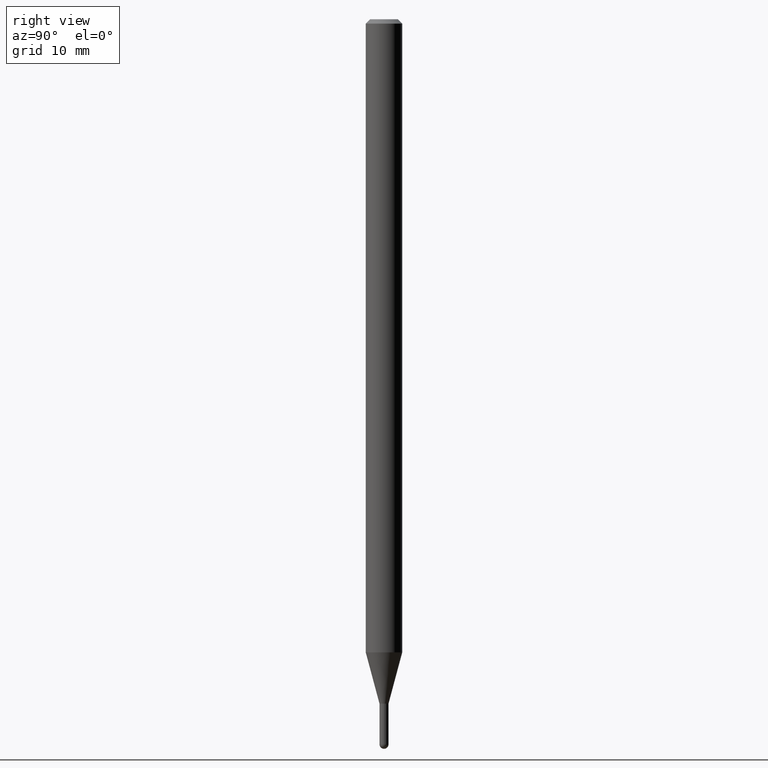
[diagram: clean part render]
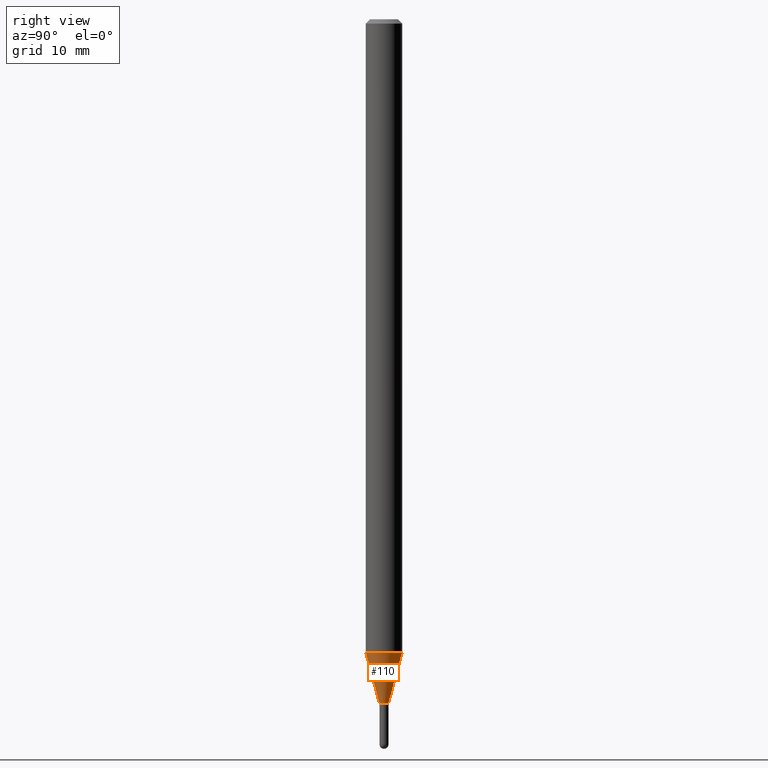
[diagram: same view with one face highlighted and labeled with its STEP entity id]
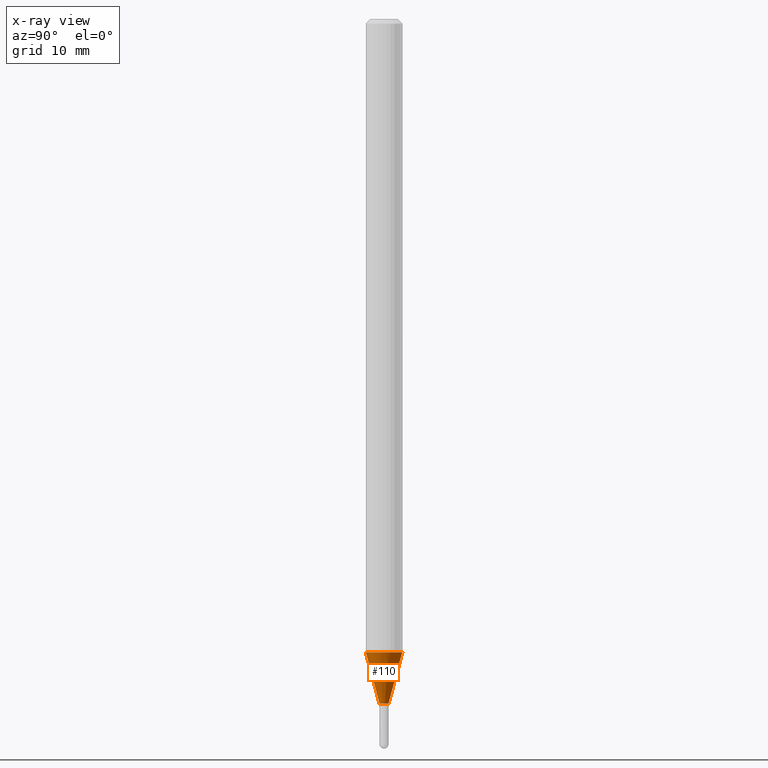
[diagram: x-ray of the same camera — body ghosted, the highlighted face saturated]
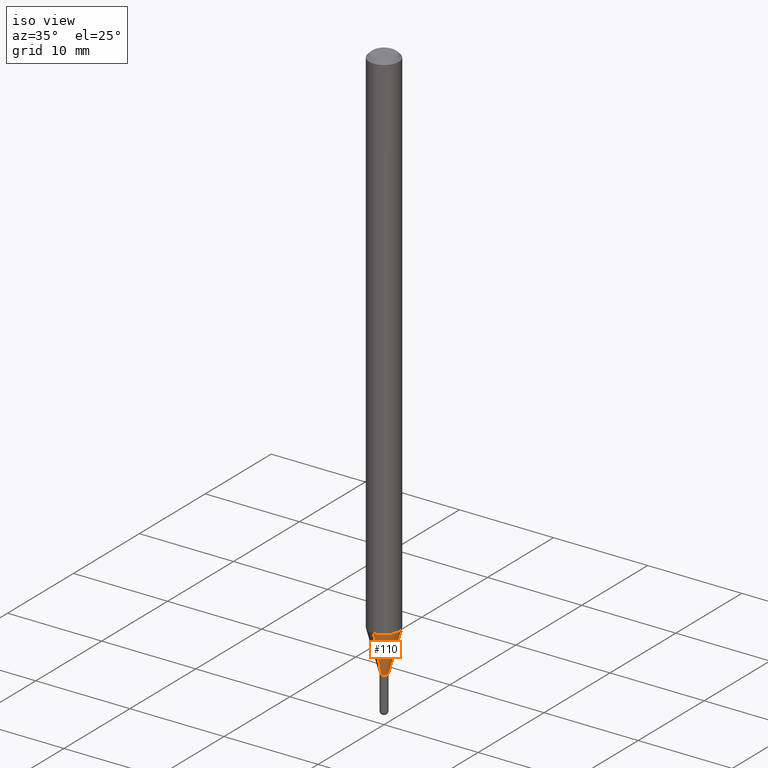
[diagram: same view with one face highlighted and labeled with its STEP entity id]
A machine part, right view. The second image highlights one B-rep face of the part: STEP entity #110.
The next image is the same camera in x-ray: the body ghosted, the highlighted face saturated — about 0% of this face is hidden behind the body in this view.
A second angle (iso view) of the same face is appended — the face is thin or edge-on in the first view.
In plain terms, the highlighted conical surface has half-angle 15 deg.
Its self-contained STEP definition (entity closure, byte-faithful):
#5 = VERTEX_POINT ( 'NONE', #294 ) ;
#6 = DIRECTION ( 'NONE',  ( -2.445469388235828600E-29, 3.491480505313426266E-15, 1.000000000000000000 ) ) ;
#27 = CARTESIAN_POINT ( 'NONE',  ( 5.734625715413019082E-29, -8.187521784959985664E-15, -2.345000000000000195 ) ) ;
#57 = VERTEX_POINT ( 'NONE', #468 ) ;
#74 = DIRECTION ( 'NONE',  ( -2.445469388235828600E-29, 3.491480505313426266E-15, 1.000000000000000000 ) ) ;
#107 = AXIS2_PLACEMENT_3D ( 'NONE', #266, #189, #122 ) ;
#110 = ADVANCED_FACE ( 'NONE', ( #457 ), #413, .T. ) ;
#116 = CARTESIAN_POINT ( 'NONE',  ( -1.082359215040773354E-16, -0.01550000000000783910, -2.345000000000000195 ) ) ;
#122 = DIRECTION ( 'NONE',  ( -6.982962677686265922E-15, -1.000000000000000000, 0.000000000000000000 ) ) ;
#125 = DIRECTION ( 'NONE',  ( 1.839019923739650408E-15, 0.2588190451025320082, 0.9659258262890650926 ) ) ;
#150 = DIRECTION ( 'NONE',  ( -1.807323732225379838E-15, -0.2588190451025252914, 0.9659258262890670910 ) ) ;
#158 = CIRCLE ( 'NONE', #107, 0.01549999999999965121 ) ;
#166 = CARTESIAN_POINT ( 'NONE',  ( 5.305674763166256692E-29, -7.575093800905100250E-15, -2.169593612044267594 ) ) ;
#189 = DIRECTION ( 'NONE',  ( -2.445469388235828600E-29, 3.491480505313426266E-15, 1.000000000000000000 ) ) ;
#197 = LINE ( 'NONE', #116, #291 ) ;
#198 = DIRECTION ( 'NONE',  ( -6.982962677686265922E-15, -1.000000000000000000, 4.370956789862821150E-15 ) ) ;
#207 = EDGE_LOOP ( 'NONE', ( #338, #297, #407, #484 ) ) ;
#216 = VERTEX_POINT ( 'NONE', #483 ) ;
#228 = CIRCLE ( 'NONE', #471, 0.06250000000000000000 ) ;
#259 = EDGE_CURVE ( 'NONE', #216, #335, #228, .T. ) ;
#266 = CARTESIAN_POINT ( 'NONE',  ( 5.734625715413019082E-29, -8.187521784959985664E-15, -2.345000000000000195 ) ) ;
#291 = VECTOR ( 'NONE', #150, 39.37007874015748143 ) ;
#294 = CARTESIAN_POINT ( 'NONE',  ( 2.771116669464931584E-16, 0.01549999999999146505, -2.345000000000000195 ) ) ;
#297 = ORIENTED_EDGE ( 'NONE', *, *, #307, .T. ) ;
#307 = EDGE_CURVE ( 'NONE', #5, #335, #354, .T. ) ;
#335 = VERTEX_POINT ( 'NONE', #416 ) ;
#338 = ORIENTED_EDGE ( 'NONE', *, *, #446, .T. ) ;
#339 = AXIS2_PLACEMENT_3D ( 'NONE', #27, #74, #424 ) ;
#354 = LINE ( 'NONE', #410, #400 ) ;
#377 = EDGE_CURVE ( 'NONE', #57, #216, #197, .T. ) ;
#400 = VECTOR ( 'NONE', #125, 39.37007874015748854 ) ;
#407 = ORIENTED_EDGE ( 'NONE', *, *, #259, .F. ) ;
#410 = CARTESIAN_POINT ( 'NONE',  ( 1.101341240428703908E-16, 0.01549999999999146505, -2.345000000000000195 ) ) ;
#413 = CONICAL_SURFACE ( 'NONE', #339, 0.01549999999999965121, 0.2617993877991576235 ) ;
#416 = CARTESIAN_POINT ( 'NONE',  ( 4.440892098501153712E-16, 0.06249999999999240191, -2.169593612044267594 ) ) ;
#424 = DIRECTION ( 'NONE',  ( -6.982962677686265922E-15, -1.000000000000000000, 0.000000000000000000 ) ) ;
#446 = EDGE_CURVE ( 'NONE', #57, #5, #158, .T. ) ;
#457 = FACE_OUTER_BOUND ( 'NONE', #207, .T. ) ;
#468 = CARTESIAN_POINT ( 'NONE',  ( -1.082359215040773354E-16, -0.01550000000000783910, -2.345000000000000195 ) ) ;
#471 = AXIS2_PLACEMENT_3D ( 'NONE', #166, #6, #198 ) ;
#483 = CARTESIAN_POINT ( 'NONE',  ( -4.364351673553386678E-16, -0.06250000000000759115, -2.169593612044267150 ) ) ;
#484 = ORIENTED_EDGE ( 'NONE', *, *, #377, .F. ) ;